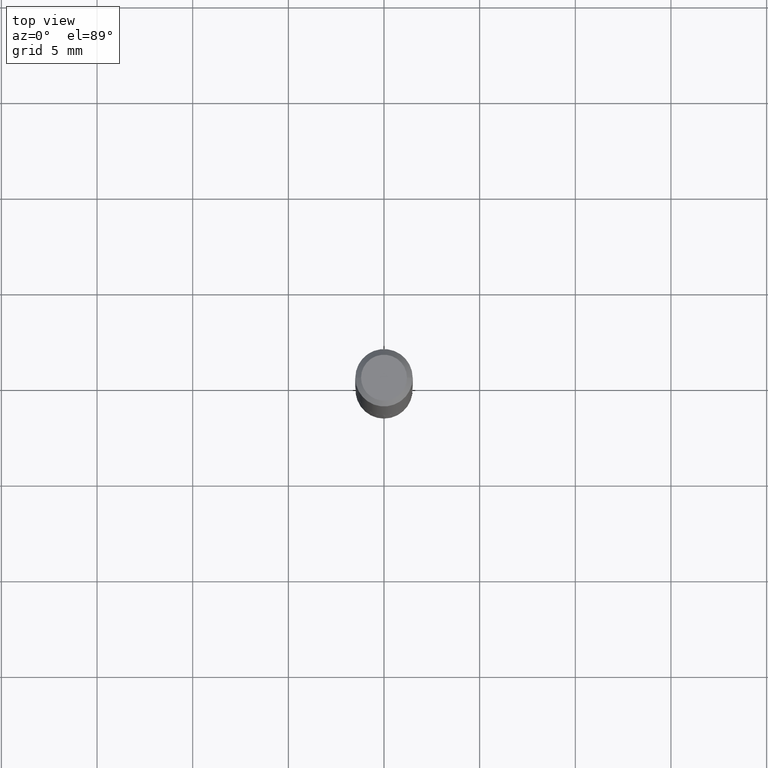
[diagram: clean part render]
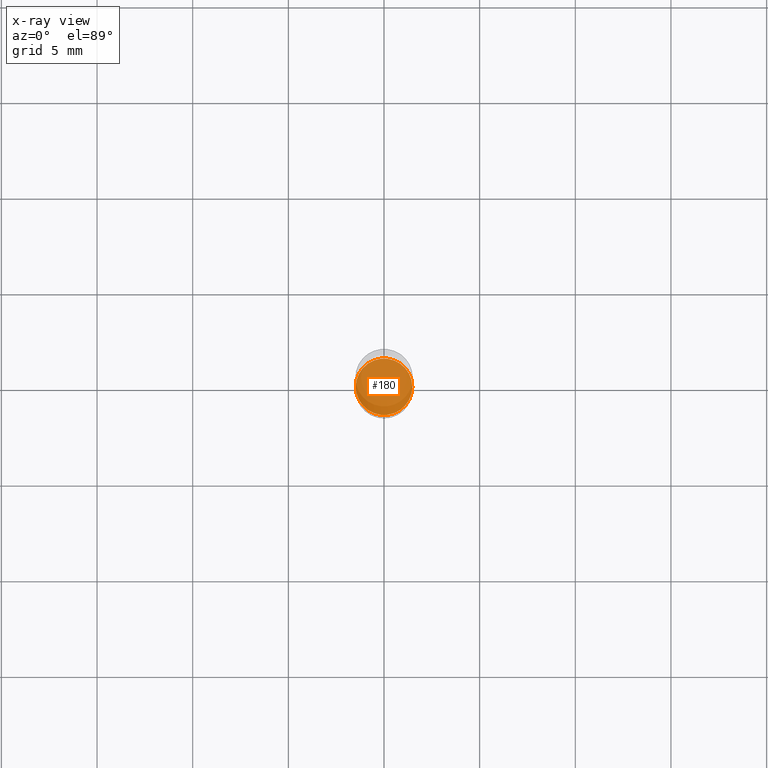
[diagram: x-ray — body ghosted, one internal face saturated and labeled with its STEP entity id]
A machine part, top view, then the same camera in x-ray: the body is ghosted and one INTERNAL B-rep face — a face not visible from any outside direction — is saturated and labeled: STEP entity #180.
In plain terms, the highlighted planar face has unit normal (-0, 0, 1).
Its self-contained STEP definition (entity closure, byte-faithful):
#3 = AXIS2_PLACEMENT_3D ( 'NONE', #48, #81, #14 ) ;
#14 = DIRECTION ( 'NONE',  ( 1.000000000000000000, -6.982962677686266711E-15, 0.000000000000000000 ) ) ;
#48 = CARTESIAN_POINT ( 'NONE',  ( 2.676565608369631234E-29, -3.821426325363821984E-15, -1.094499999999999806 ) ) ;
#59 = FACE_OUTER_BOUND ( 'NONE', #424, .T. ) ;
#71 = ORIENTED_EDGE ( 'NONE', *, *, #371, .F. ) ;
#81 = DIRECTION ( 'NONE',  ( -2.445468806185136597E-29, 3.491481338843145583E-15, 1.000000000000000000 ) ) ;
#97 = CARTESIAN_POINT ( 'NONE',  ( 4.471846062347433444E-29, -1.250482534249861610E-15, -1.094499999999999806 ) ) ;
#103 = CIRCLE ( 'NONE', #488, 0.05815000000000000030 ) ;
#123 = AXIS2_PLACEMENT_3D ( 'NONE', #97, #130, #474 ) ;
#130 = DIRECTION ( 'NONE',  ( -2.438088387897960049E-29, 3.491481338843145188E-15, 1.000000000000000000 ) ) ;
#180 = ADVANCED_FACE ( 'NONE', ( #59 ), #438, .F. ) ;
#239 = CARTESIAN_POINT ( 'NONE',  ( 0.05815000000000000030, -4.227485605071278703E-15, -1.094499999999999806 ) ) ;
#243 = ORIENTED_EDGE ( 'NONE', *, *, #422, .F. ) ;
#254 = VERTEX_POINT ( 'NONE', #480 ) ;
#297 = DIRECTION ( 'NONE',  ( 1.000000000000000000, -6.982962677686266711E-15, 0.000000000000000000 ) ) ;
#371 = EDGE_CURVE ( 'NONE', #462, #254, #467, .T. ) ;
#394 = CARTESIAN_POINT ( 'NONE',  ( 2.676565608369631234E-29, -3.821426325363821984E-15, -1.094499999999999806 ) ) ;
#422 = EDGE_CURVE ( 'NONE', #254, #462, #103, .T. ) ;
#424 = EDGE_LOOP ( 'NONE', ( #71, #243 ) ) ;
#438 = PLANE ( 'NONE',  #123 ) ;
#462 = VERTEX_POINT ( 'NONE', #239 ) ;
#467 = CIRCLE ( 'NONE', #3, 0.05815000000000000030 ) ;
#473 = DIRECTION ( 'NONE',  ( -2.445468806185136597E-29, 3.491481338843145583E-15, 1.000000000000000000 ) ) ;
#474 = DIRECTION ( 'NONE',  ( 1.000000000000000000, -6.982962677686265922E-15, 4.876176775795935793E-29 ) ) ;
#480 = CARTESIAN_POINT ( 'NONE',  ( -0.05815000000000000030, -3.405596497345212671E-15, -1.094499999999999806 ) ) ;
#488 = AXIS2_PLACEMENT_3D ( 'NONE', #394, #473, #297 ) ;